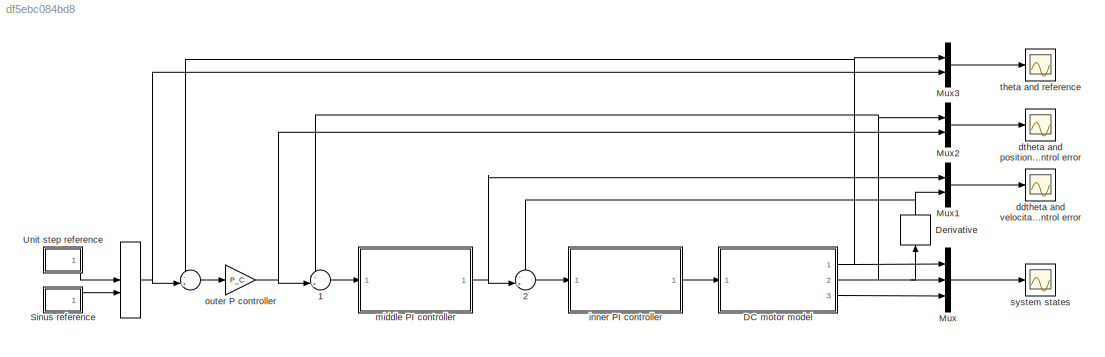
MODEL slx_df5ebc084bd8
KIND model
CONFIG AbsTol = auto
CONFIG FixedStep = auto
CONFIG MaxStep = 1e-2
CONFIG MinStep = auto
CONFIG RelTol = 1e-3
CONFIG SampleTimeConstraint = Unconstrained
CONFIG Solver = VariableStepAuto
CONFIG SolverMode = Auto
CONFIG SolverName = VariableStepAuto
CONFIG StartTime = 0.0
CONFIG StopTime = 10
BLOCK [ManualSwitch]    
BLOCK [Sum]      
  IconShape = round
  InputSameDT = off
  Inputs = -+|
  OutDataTypeStr = Inherit: Inherit via internal rule
  Ports = [2, 1]
  SaturateOnIntegerOverflow = off
BLOCK [Sum]  1
  IconShape = round
  InputSameDT = off
  Inputs = -+|
  OutDataTypeStr = Inherit: Inherit via internal rule
  Ports = [2, 1]
  SaturateOnIntegerOverflow = off
BLOCK [Sum]  2
  IconShape = round
  InputSameDT = off
  Inputs = -+|
  OutDataTypeStr = Inherit: Inherit via internal rule
  Ports = [2, 1]
  SaturateOnIntegerOverflow = off
BLOCK [ModelReference] DC motor model
  CopyOfModelName = DC_motor_c.slx
  ModelNameDialog = DC_motor_c.slx
  ModelReferenceVersion = 1.7
  Ports = [1, 3]
  Variant = off
BLOCK [Derivative] Derivative
BLOCK [Mux] Mux
  DisplayOption = bar
  Inputs = 3
  Ports = [3, 1]
BLOCK [Mux] Mux1
  DisplayOption = bar
  Inputs = 2
  Ports = [2, 1]
BLOCK [Mux] Mux2
  DisplayOption = bar
  Inputs = 2
  Ports = [2, 1]
BLOCK [Mux] Mux3
  DisplayOption = bar
  Inputs = 2
  Ports = [2, 1]
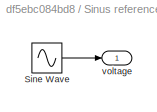
BLOCK [SubSystem] Sinus reference
  Ports = [0, 1]
  RequestExecContextInheritance = off
  Variant = off
BLOCK [Sin] Sinus reference/Sine Wave
  Frequency = 2*pi/10
  Ports = [0, 1]
  SampleTime = 0
BLOCK [Outport] Sinus reference/voltage
  IconDisplay = Port number
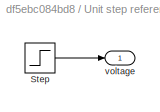
BLOCK [SubSystem] Unit step reference
  Ports = [0, 1]
  RequestExecContextInheritance = off
  Variant = off
BLOCK [Step] Unit step reference/Step
  SampleTime = 0
BLOCK [Outport] Unit step reference/voltage
  IconDisplay = Port number
BLOCK [Scope] ddtheta and velocital control error
  Ports = [1]
  ScopeSpecificationString = Simulink.scopes.TimeScopeBlockCfg('CurrentConfiguration', extmgr.ConfigurationSet(extmgr.Configuration('Core','General UI',true),extmgr.Configuration('Core','Source UI',true),extmgr.Configuration('Sources','WiredSimulink',true,'DataLoggingLimitDataPoints',true,'DataLoggingSaveFormat','Array','DataLoggingDecimation','1','DataLoggingDecimateData',true,'DataLoggingVariableName','ScopeData1'),extmgr.C...<+1546ch>
BLOCK [Scope] dtheta and positional control error
  Ports = [1]
  ScopeSpecificationString = Simulink.scopes.TimeScopeBlockCfg('CurrentConfiguration', extmgr.ConfigurationSet(extmgr.Configuration('Core','General UI',true),extmgr.Configuration('Core','Source UI',true),extmgr.Configuration('Sources','WiredSimulink',true,'DataLoggingLimitDataPoints',true,'DataLoggingSaveFormat','Array','DataLoggingDecimation','1','DataLoggingDecimateData',true,'DataLoggingVariableName','ScopeData1'),extmgr.C...<+1546ch>
BLOCK [ModelReference] inner PI controller   
  CopyOfModelName = PID_AW_c.slx
  ModelNameDialog = PID_AW_c.slx
  ModelReferenceVersion = 1.4
  Ports = [1, 1]
  Variant = off
BLOCK [ModelReference] middle PI controller
  CopyOfModelName = PID_AW_c.slx
  ModelNameDialog = PID_AW_c.slx
  ModelReferenceVersion = 1.4
  Ports = [1, 1]
  Variant = off
BLOCK [Gain] outer P controller
  Gain = P_C
  OutDataTypeStr = Inherit: Inherit via internal rule
  ParamDataTypeStr = Inherit: Inherit via internal rule
  SaturateOnIntegerOverflow = off
BLOCK [Scope] system states
  Ports = [1]
  ScopeSpecificationString = Simulink.scopes.TimeScopeBlockCfg('CurrentConfiguration', extmgr.ConfigurationSet(extmgr.Configuration('Core','General UI',true),extmgr.Configuration('Core','Source UI',true),extmgr.Configuration('Sources','WiredSimulink',true,'DataLoggingLimitDataPoints',true,'DataLoggingSaveFormat','Array','DataLoggingDecimation','1','DataLoggingDecimateData',true),extmgr.Configuration('Visuals','Time Domain',tr...<+1550ch>
BLOCK [Scope] theta and reference
  Ports = [1]
  ScopeSpecificationString = Simulink.scopes.TimeScopeBlockCfg('CurrentConfiguration', extmgr.ConfigurationSet(extmgr.Configuration('Core','General UI',true),extmgr.Configuration('Core','Source UI',true),extmgr.Configuration('Sources','WiredSimulink',true,'DataLoggingLimitDataPoints',true,'DataLoggingSaveFormat','Array','DataLoggingDecimation','1','DataLoggingDecimateData',true,'DataLoggingVariableName','ScopeData2'),extmgr.C...<+1535ch>
LINE      :1 -> outer P controller:1
NET    :1 ->      :2, Mux3:2
LINE  1:1 -> middle PI controller:1
LINE  2:1 -> inner PI controller   :1
NET DC motor model:1 ->      :1, Mux3:1, Mux:1
NET DC motor model:2 ->  1:1, Derivative:1, Mux2:1, Mux:2
LINE DC motor model:3 -> Mux:3
NET Derivative:1 ->  2:1, Mux1:2
LINE Mux1:1 -> ddtheta and velocital control error:1
LINE Mux2:1 -> dtheta and positional control error:1
LINE Mux3:1 -> theta and reference:1
LINE Mux:1 -> system states:1
LINE Sinus reference/Sine Wave:1 -> Sinus reference/voltage:1
LINE Sinus reference:1 ->    :2
LINE Unit step reference/Step:1 -> Unit step reference/voltage:1
LINE Unit step reference:1 ->    :1
LINE inner PI controller   :1 -> DC motor model:1
NET middle PI controller:1 ->  2:2, Mux1:1
NET outer P controller:1 ->  1:2, Mux2:2
note: NET lines group one-source signal fan-out (src -> all destinations, sorted); 1:1 wires keep LINE
